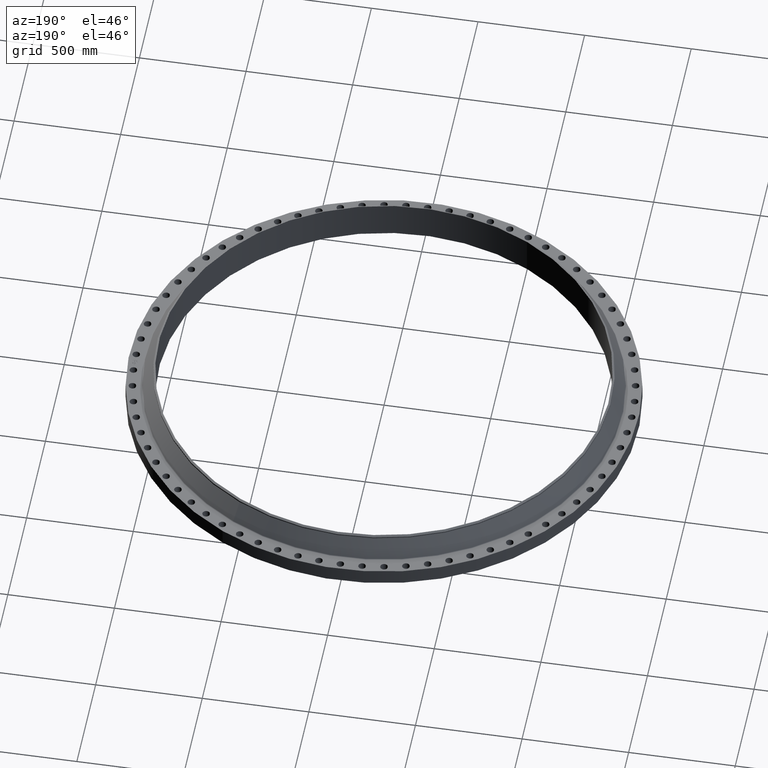
[diagram: clean part render]
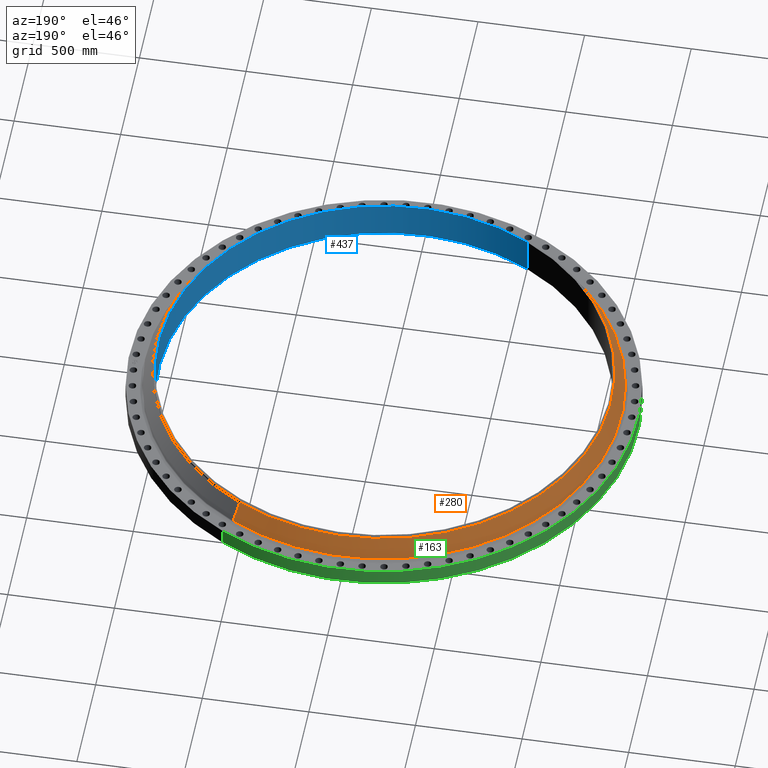
[diagram: same view with three faces highlighted in distinct colors, each labeled with its STEP entity id]
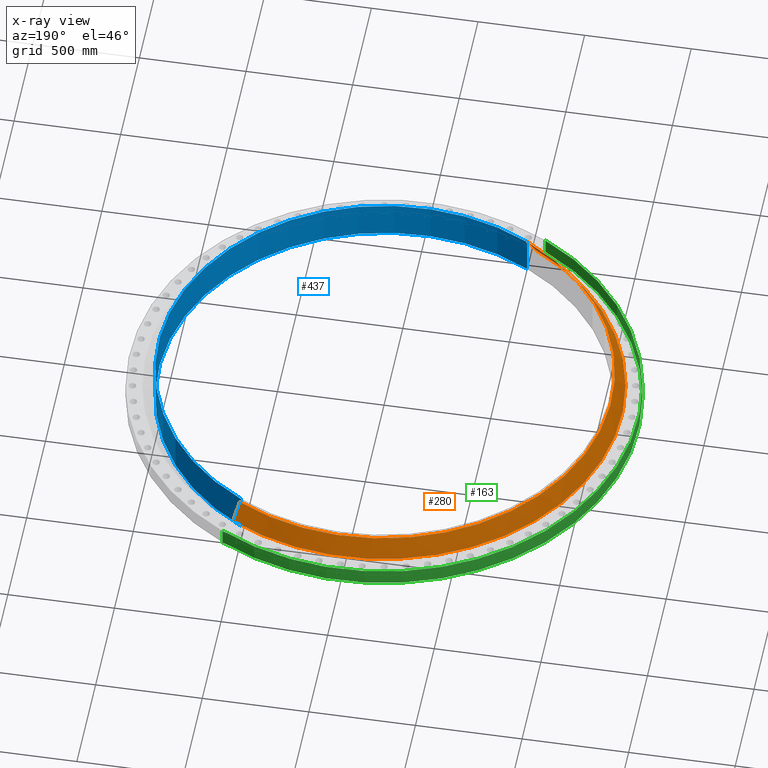
[diagram: x-ray of the same camera — body ghosted, the three highlighted faces saturated]
A machine part, auxiliary view with three faces highlighted in distinct colors.
The next image is the same camera in x-ray (body ghosted, the three faces saturated) — at least one of them is partly hidden behind the body in this view.
Their STEP definitions:

[orange] entity #280 — the highlighted conical surface has half-angle 29.577 deg.
#228=AXIS2_PLACEMENT_3D('Circle Axis2P3D',#226,#227,$) ;
#241=AXIS2_PLACEMENT_3D('Cone Axis2P3D',#238,#239,#240) ;
#271=AXIS2_PLACEMENT_3D('Circle Axis2P3D',#269,#270,$) ;
#199=CARTESIAN_POINT('Vertex',(21.0602758688,38.5505763936,3.12660339613)) ;
#206=CARTESIAN_POINT('Vertex',(-21.0602758688,-38.5505763936,3.12660339613)) ;
#226=CARTESIAN_POINT('Axis2P3D Location',(0.,0.,3.12660339613)) ;
#238=CARTESIAN_POINT('Axis2P3D Location',(0.,0.,6.52398984384)) ;
#243=CARTESIAN_POINT('Line Origine',(20.5980742451,37.7045219966,4.82529661998)) ;
#247=CARTESIAN_POINT('Vertex',(20.1358726215,36.8584675995,6.52398984384)) ;
#254=CARTESIAN_POINT('Vertex',(-20.1358726215,-36.8584675995,6.52398984384)) ;
#257=CARTESIAN_POINT('Line Origine',(-20.5980742451,-37.7045219966,4.82529661998)) ;
#269=CARTESIAN_POINT('Axis2P3D Location',(0.,0.,6.52398984384)) ;
#227=DIRECTION('Axis2P3D Direction',(0.,0.,-0.0393700787402)) ;
#239=DIRECTION('Axis2P3D Direction',(0.,0.,-0.0393700787402)) ;
#240=DIRECTION('Axis2P3D XDirection',(-0.0188750212049,-0.0345504945626,0.)) ;
#244=DIRECTION('Vector Direction',(0.00931645405992,0.0170536547666,-0.0342400298314)) ;
#258=DIRECTION('Vector Direction',(-0.00931645405992,-0.0170536547666,-0.0342400298314)) ;
#270=DIRECTION('Axis2P3D Direction',(0.,0.,-0.0393700787402)) ;
#245=VECTOR('Line Direction',#244,0.0393700787402) ;
#259=VECTOR('Line Direction',#258,0.0393700787402) ;
#275=ORIENTED_EDGE('',*,*,#230,.F.) ;
#276=ORIENTED_EDGE('',*,*,#261,.T.) ;
#277=ORIENTED_EDGE('',*,*,#273,.T.) ;
#278=ORIENTED_EDGE('',*,*,#249,.F.) ;
#280=ADVANCED_FACE('PartBody',(#279),#242,.T.) ;
#229=CIRCLE('generated circle',#228,43.9281476954) ;
#272=CIRCLE('generated circle',#271,42.0000000002) ;
#242=CONICAL_SURFACE('Cone',#241,42.0000000002,0.516208704301) ;
#230=EDGE_CURVE('',#207,#200,#229,.T.) ;
#249=EDGE_CURVE('',#200,#248,#246,.F.) ;
#261=EDGE_CURVE('',#207,#255,#260,.F.) ;
#273=EDGE_CURVE('',#255,#248,#272,.T.) ;
#274=EDGE_LOOP('',(#275,#276,#277,#278)) ;
#279=FACE_OUTER_BOUND('',#274,.T.) ;
#246=LINE('Line',#243,#245) ;
#260=LINE('Line',#257,#259) ;
#200=VERTEX_POINT('',#199) ;
#207=VERTEX_POINT('',#206) ;
#248=VERTEX_POINT('',#247) ;
#255=VERTEX_POINT('',#254) ;

[blue] entity #437 — the highlighted cylindrical surface (partial cylindrical patch) has radius 1057.28 mm, axis along (0, 0, -1).
#387=AXIS2_PLACEMENT_3D('Circle Axis2P3D',#385,#386,$) ;
#398=AXIS2_PLACEMENT_3D('Cylinder Axis2P3D',#395,#396,#397) ;
#428=AXIS2_PLACEMENT_3D('Circle Axis2P3D',#426,#427,$) ;
#380=CARTESIAN_POINT('Vertex',(-19.9560880445,-36.5293741388,7.00000000003)) ;
#382=CARTESIAN_POINT('Vertex',(19.9560880445,36.5293741388,7.00000000003)) ;
#385=CARTESIAN_POINT('Axis2P3D Location',(-4.47585975282E-015,-3.35689481461E-015,7.00000000003)) ;
#395=CARTESIAN_POINT('Axis2P3D Location',(0.,0.,3.51875000001)) ;
#400=CARTESIAN_POINT('Line Origine',(-19.9560880445,-36.5293741388,3.46875000001)) ;
#404=CARTESIAN_POINT('Vertex',(-19.9560880445,-36.5293741388,-0.0625000000003)) ;
#411=CARTESIAN_POINT('Vertex',(19.9560880445,36.5293741388,-0.0625000000003)) ;
#414=CARTESIAN_POINT('Line Origine',(19.9560880445,36.5293741388,3.46875000001)) ;
#426=CARTESIAN_POINT('Axis2P3D Location',(0.,0.,-0.0625000000003)) ;
#386=DIRECTION('Axis2P3D Direction',(0.,-0.,-0.0393700787402)) ;
#396=DIRECTION('Axis2P3D Direction',(0.,0.,-0.0393700787402)) ;
#397=DIRECTION('Axis2P3D XDirection',(0.0188750212049,0.0345504945626,0.)) ;
#401=DIRECTION('Vector Direction',(0.,0.,-0.0393700787402)) ;
#415=DIRECTION('Vector Direction',(0.,0.,-0.0393700787402)) ;
#427=DIRECTION('Axis2P3D Direction',(0.,0.,-0.0393700787402)) ;
#402=VECTOR('Line Direction',#401,0.0393700787402) ;
#416=VECTOR('Line Direction',#415,0.0393700787402) ;
#432=ORIENTED_EDGE('',*,*,#418,.T.) ;
#433=ORIENTED_EDGE('',*,*,#430,.T.) ;
#434=ORIENTED_EDGE('',*,*,#406,.F.) ;
#435=ORIENTED_EDGE('',*,*,#389,.F.) ;
#437=ADVANCED_FACE('PartBody',(#436),#399,.F.) ;
#388=CIRCLE('generated circle',#387,41.6250000002) ;
#429=CIRCLE('generated circle',#428,41.6250000002) ;
#399=CYLINDRICAL_SURFACE('generated cylinder',#398,41.6250000002) ;
#389=EDGE_CURVE('',#383,#381,#388,.T.) ;
#406=EDGE_CURVE('',#381,#405,#403,.T.) ;
#418=EDGE_CURVE('',#383,#412,#417,.T.) ;
#430=EDGE_CURVE('',#412,#405,#429,.T.) ;
#431=EDGE_LOOP('',(#432,#433,#434,#435)) ;
#436=FACE_OUTER_BOUND('',#431,.T.) ;
#403=LINE('Line',#400,#402) ;
#417=LINE('Line',#414,#416) ;
#381=VERTEX_POINT('',#380) ;
#383=VERTEX_POINT('',#382) ;
#405=VERTEX_POINT('',#404) ;
#412=VERTEX_POINT('',#411) ;

[green] entity #163 — the highlighted cylindrical surface (partial cylindrical patch) has radius 1193.8 mm, axis along (0, 0, -1).
#127=AXIS2_PLACEMENT_3D('Cylinder Axis2P3D',#124,#125,#126) ;
#131=AXIS2_PLACEMENT_3D('Circle Axis2P3D',#129,#130,$) ;
#147=AXIS2_PLACEMENT_3D('Circle Axis2P3D',#145,#146,$) ;
#124=CARTESIAN_POINT('Axis2P3D Location',(0.,0.,3.51875000001)) ;
#129=CARTESIAN_POINT('Axis2P3D Location',(0.,0.,5.59482469102E-015)) ;
#133=CARTESIAN_POINT('Vertex',(-22.5330003145,-41.246380409,6.15430716013E-015)) ;
#135=CARTESIAN_POINT('Vertex',(22.5330003145,41.246380409,6.15430716013E-015)) ;
#138=CARTESIAN_POINT('Line Origine',(-22.5330003145,-41.246380409,1.50000000001)) ;
#142=CARTESIAN_POINT('Vertex',(-22.5330003145,-41.246380409,3.00000000001)) ;
#145=CARTESIAN_POINT('Axis2P3D Location',(0.,0.,3.00000000001)) ;
#149=CARTESIAN_POINT('Vertex',(22.5330003145,41.246380409,3.00000000001)) ;
#152=CARTESIAN_POINT('Line Origine',(22.5330003145,41.246380409,1.50000000001)) ;
#125=DIRECTION('Axis2P3D Direction',(0.,0.,-0.0393700787402)) ;
#126=DIRECTION('Axis2P3D XDirection',(0.0188750212049,0.0345504945626,0.)) ;
#130=DIRECTION('Axis2P3D Direction',(0.,0.,-0.0393700787402)) ;
#139=DIRECTION('Vector Direction',(0.,0.,-0.0393700787402)) ;
#146=DIRECTION('Axis2P3D Direction',(0.,0.,-0.0393700787402)) ;
#153=DIRECTION('Vector Direction',(0.,0.,-0.0393700787402)) ;
#140=VECTOR('Line Direction',#139,0.0393700787402) ;
#154=VECTOR('Line Direction',#153,0.0393700787402) ;
#158=ORIENTED_EDGE('',*,*,#137,.F.) ;
#159=ORIENTED_EDGE('',*,*,#144,.T.) ;
#160=ORIENTED_EDGE('',*,*,#151,.T.) ;
#161=ORIENTED_EDGE('',*,*,#156,.F.) ;
#163=ADVANCED_FACE('PartBody',(#162),#128,.T.) ;
#132=CIRCLE('generated circle',#131,47.0000000002) ;
#148=CIRCLE('generated circle',#147,47.0000000002) ;
#128=CYLINDRICAL_SURFACE('generated cylinder',#127,47.0000000002) ;
#137=EDGE_CURVE('',#134,#136,#132,.T.) ;
#144=EDGE_CURVE('',#134,#143,#141,.F.) ;
#151=EDGE_CURVE('',#143,#150,#148,.T.) ;
#156=EDGE_CURVE('',#136,#150,#155,.F.) ;
#157=EDGE_LOOP('',(#158,#159,#160,#161)) ;
#162=FACE_OUTER_BOUND('',#157,.T.) ;
#141=LINE('Line',#138,#140) ;
#155=LINE('Line',#152,#154) ;
#134=VERTEX_POINT('',#133) ;
#136=VERTEX_POINT('',#135) ;
#143=VERTEX_POINT('',#142) ;
#150=VERTEX_POINT('',#149) ;